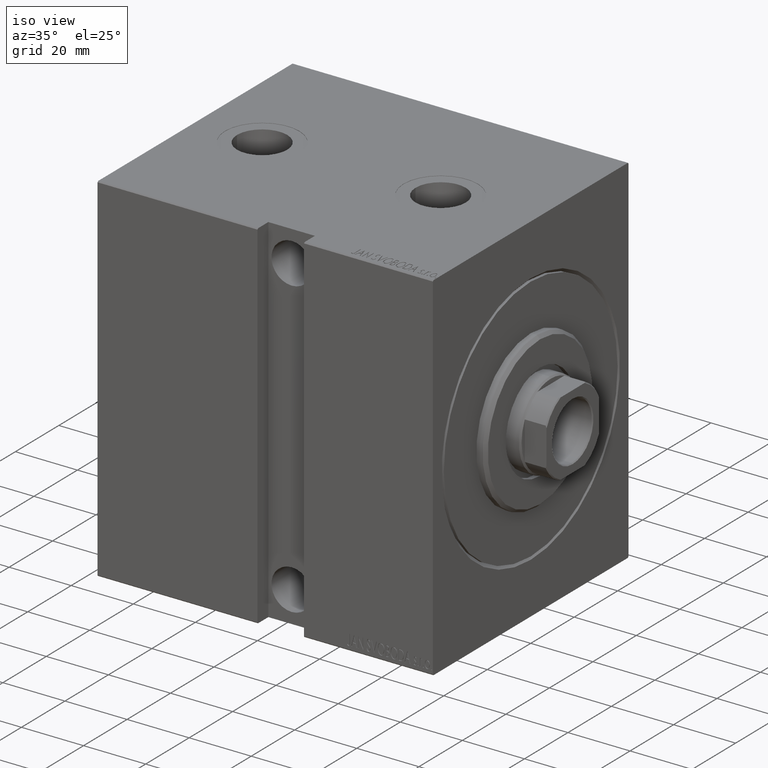
[diagram: clean part render]
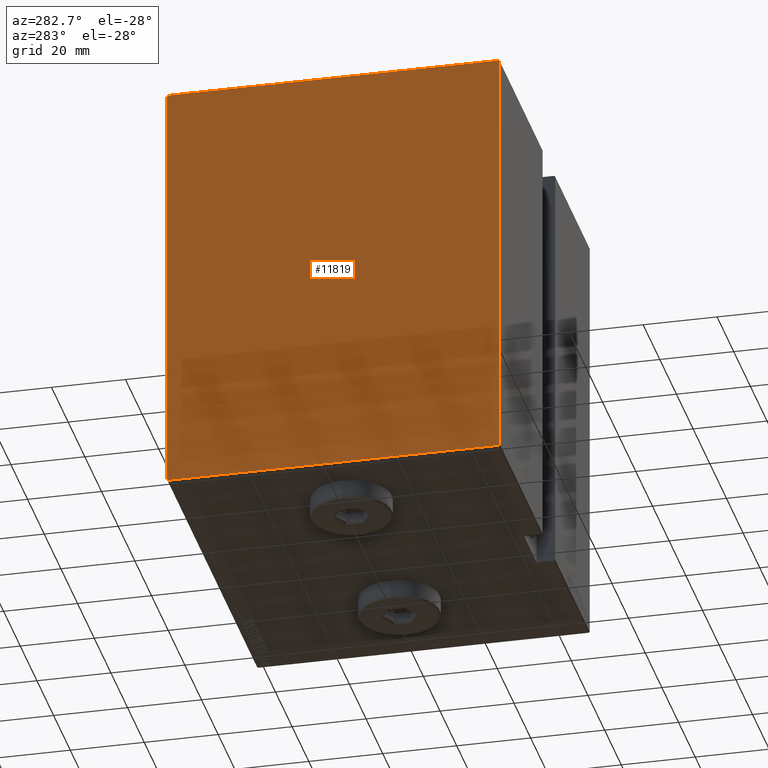
[diagram: tour spotlight — one face highlighted and labeled with its STEP entity id]
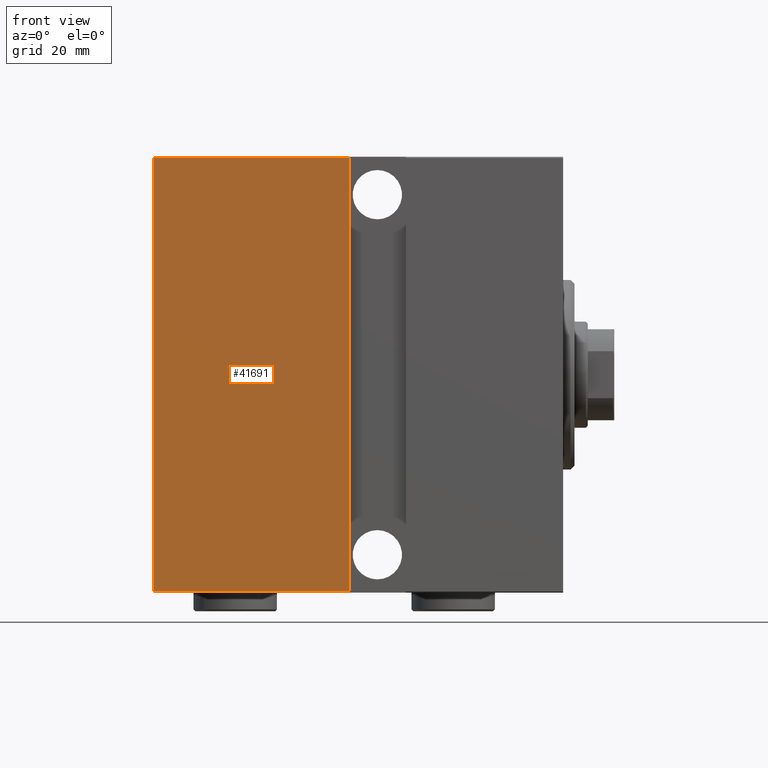
[diagram: tour spotlight — one face highlighted and labeled with its STEP entity id]
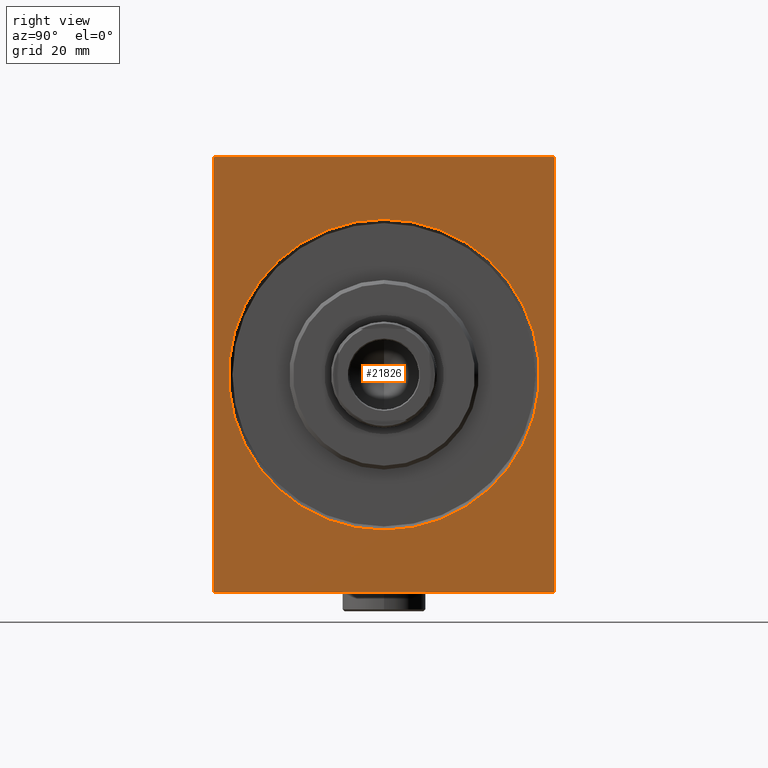
[diagram: tour spotlight — one face highlighted and labeled with its STEP entity id]
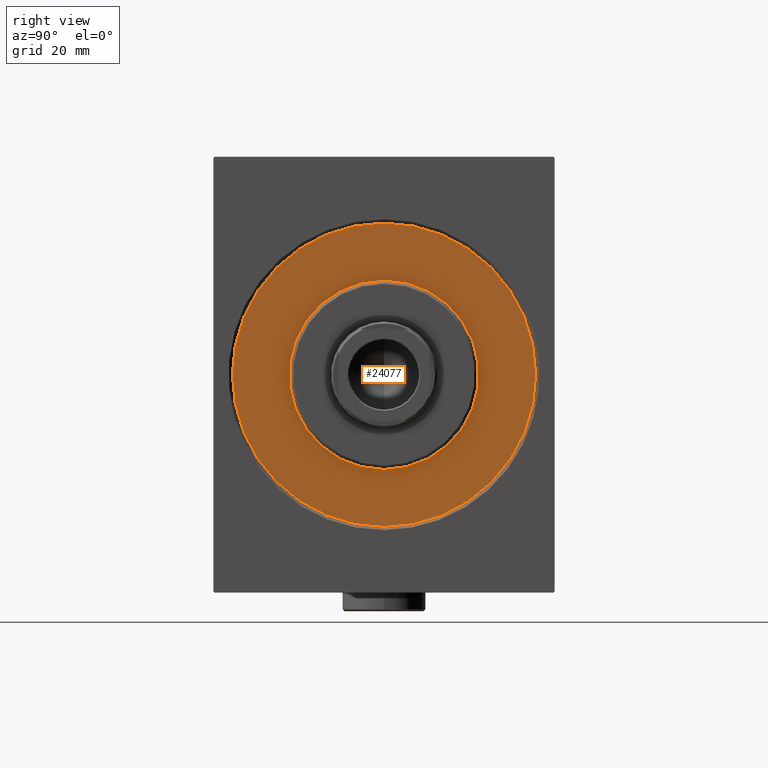
[diagram: tour spotlight — one face highlighted and labeled with its STEP entity id]
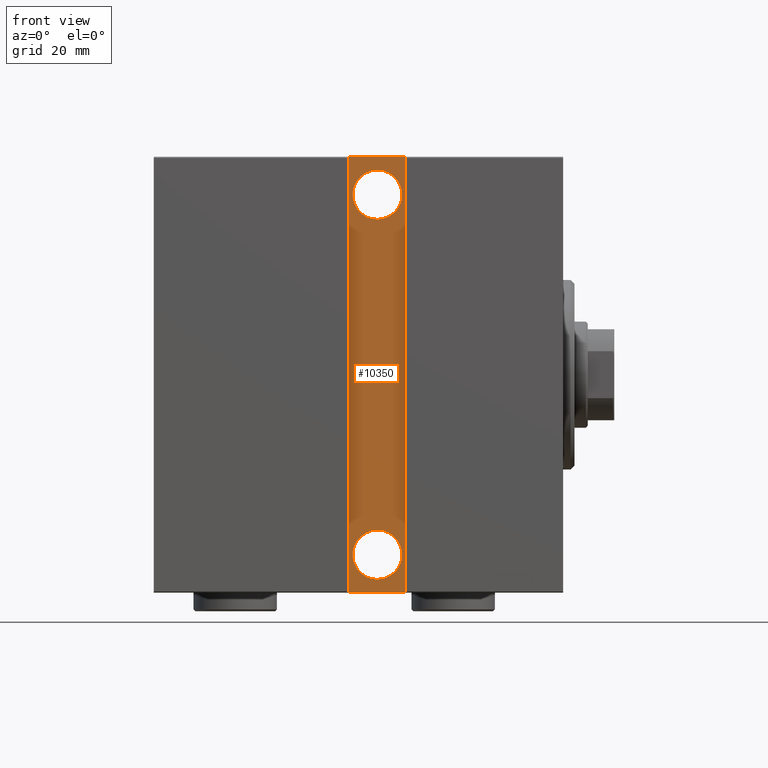
[diagram: tour spotlight — one face highlighted and labeled with its STEP entity id]
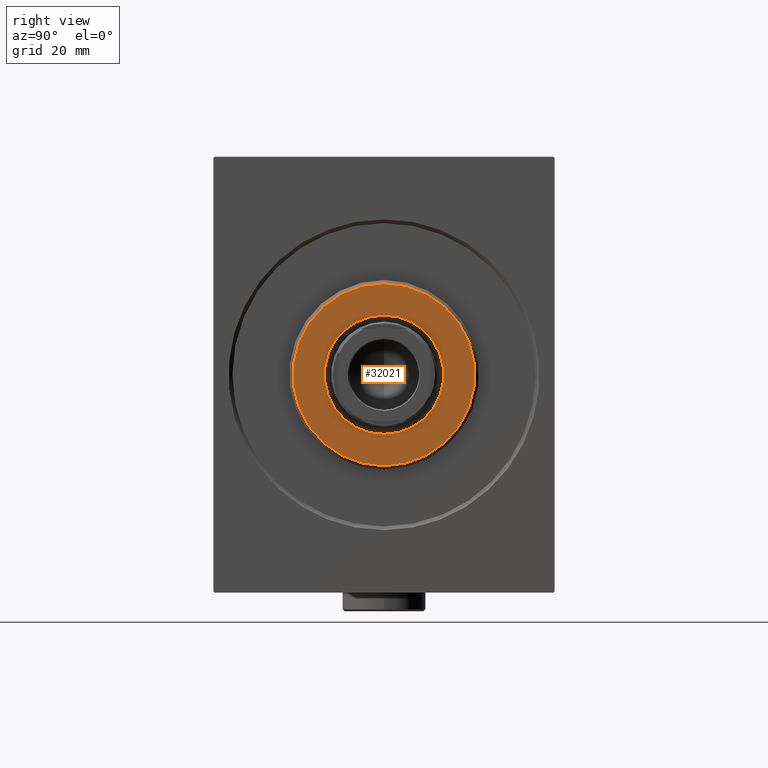
[diagram: tour spotlight — one face highlighted and labeled with its STEP entity id]
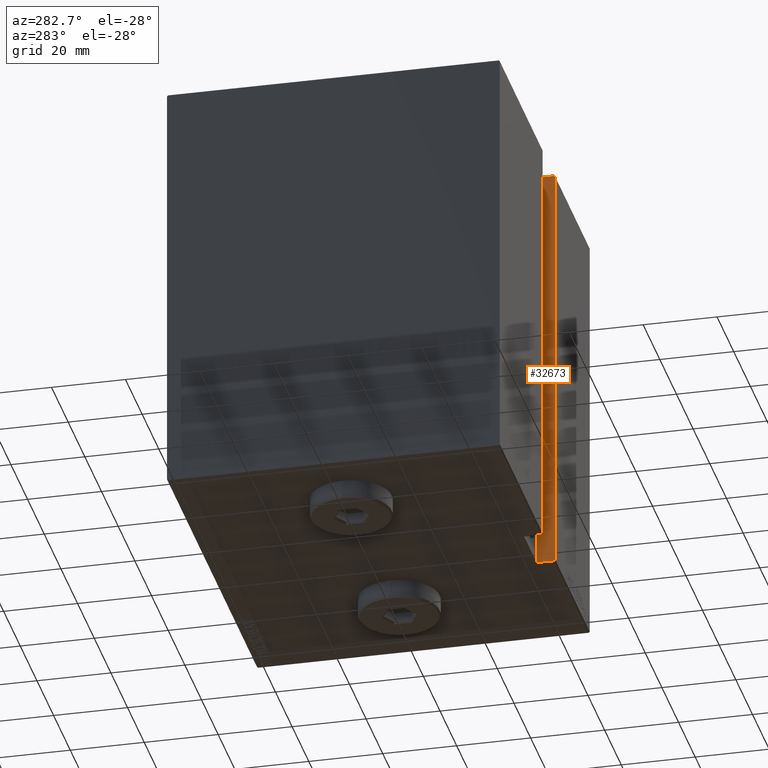
[diagram: tour spotlight — one face highlighted and labeled with its STEP entity id]
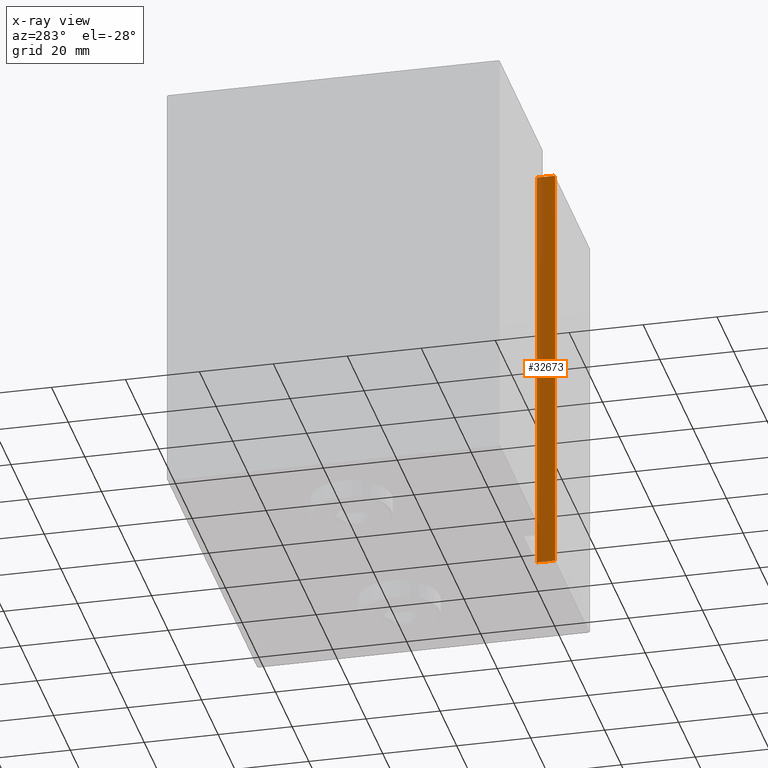
[diagram: x-ray of the same camera — body ghosted, this tour face saturated]
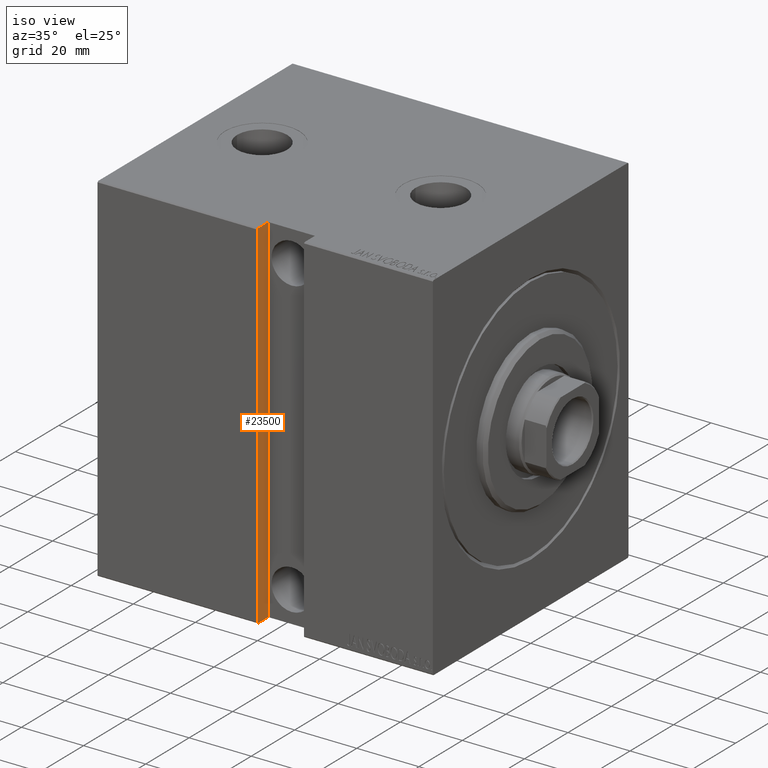
[diagram: tour spotlight — one face highlighted and labeled with its STEP entity id]
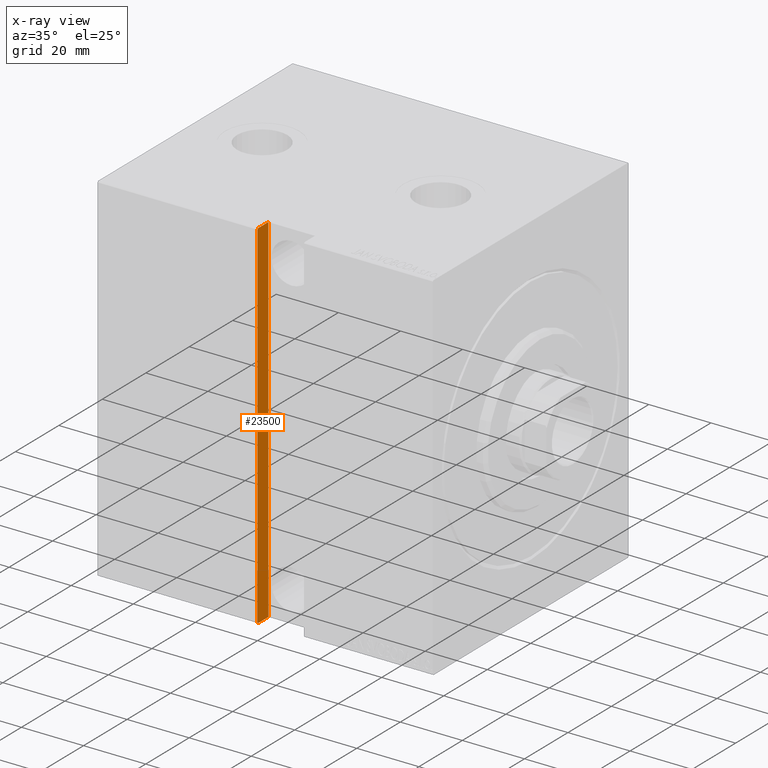
[diagram: x-ray of the same camera — body ghosted, this tour face saturated]
A machine part: a face-by-face anatomy tour. The part has 902 B-rep faces; the first image is the clean iso view, then the 8 largest visible faces are spotlighted one at a time (largest first), each with its STEP entity span.

Face 1 — auxiliary view, entity #11819. In plain terms, the highlighted planar face has unit normal (-1, 0, 0).
Definition (entity closure, byte-faithful):
#60 = ORIENTED_EDGE ( 'NONE', *, *, #18728, .T. ) ;
#278 = ORIENTED_EDGE ( 'NONE', *, *, #16950, .T. ) ;
#1346 = CARTESIAN_POINT ( 'NONE',  ( 108.0000000000000000, 45.00000000000001421, -57.50000000000000711 ) ) ;
#1401 = EDGE_CURVE ( 'NONE', #6272, #5452, #31841, .T. ) ;
#1415 = DIRECTION ( 'NONE',  ( 1.000000000000000000, 0.000000000000000000, -0.000000000000000000 ) ) ;
#1587 = CARTESIAN_POINT ( 'NONE',  ( 108.0000000000000000, 51.10000000000053433, 51.09999999999935483 ) ) ;
#1938 = ORIENTED_EDGE ( 'NONE', *, *, #1401, .T. ) ;
#3593 = CARTESIAN_POINT ( 'NONE',  ( 108.0000000000000000, -45.00000000000000000, -57.20000000000003126 ) ) ;
#5207 = PLANE ( 'NONE',  #38437 ) ;
#5452 = VERTEX_POINT ( 'NONE', #24704 ) ;
#5574 = LINE ( 'NONE', #12472, #43484 ) ;
#6272 = VERTEX_POINT ( 'NONE', #33858 ) ;
#6981 = VECTOR ( 'NONE', #14932, 1000.000000000000000 ) ;
#8277 = DIRECTION ( 'NONE',  ( -0.000000000000000000, -0.7071067811865393571, 0.7071067811865556774 ) ) ;
#9507 = ORIENTED_EDGE ( 'NONE', *, *, #10414, .T. ) ;
#10414 = EDGE_CURVE ( 'NONE', #39583, #18045, #27740, .T. ) ;
#11452 = ORIENTED_EDGE ( 'NONE', *, *, #15094, .T. ) ;
#11819 = ADVANCED_FACE ( 'NONE', ( #32140 ), #5207, .T. ) ;
#12195 = ORIENTED_EDGE ( 'NONE', *, *, #34893, .T. ) ;
#12472 = CARTESIAN_POINT ( 'NONE',  ( 108.0000000000000000, -45.00000000000000000, 57.49999999999999289 ) ) ;
#12544 = DIRECTION ( 'NONE',  ( -0.000000000000000000, 0.000000000000000000, -1.000000000000000000 ) ) ;
#12688 = DIRECTION ( 'NONE',  ( 0.000000000000000000, 0.000000000000000000, -1.000000000000000000 ) ) ;
#13000 = VECTOR ( 'NONE', #25996, 1000.000000000000114 ) ;
#13290 = DIRECTION ( 'NONE',  ( -0.000000000000000000, 0.7071067811865474617, -0.7071067811865474617 ) ) ;
#13494 = CARTESIAN_POINT ( 'NONE',  ( 108.0000000000000000, -51.10000000000000853, 51.10000000000000853 ) ) ;
#13723 = CARTESIAN_POINT ( 'NONE',  ( 108.0000000000000000, -51.10000000000002984, -51.10000000000002984 ) ) ;
#14932 = DIRECTION ( 'NONE',  ( 0.000000000000000000, 0.000000000000000000, 1.000000000000000000 ) ) ;
#15094 = EDGE_CURVE ( 'NONE', #23700, #39970, #33330, .T. ) ;
#15845 = VECTOR ( 'NONE', #27831, 1000.000000000000000 ) ;
#15910 = ORIENTED_EDGE ( 'NONE', *, *, #41069, .T. ) ;
#16440 = CARTESIAN_POINT ( 'NONE',  ( 108.0000000000000000, -44.69999999999997442, 57.49999999999999289 ) ) ;
#16950 = EDGE_CURVE ( 'NONE', #39970, #32290, #31924, .T. ) ;
#17643 = EDGE_LOOP ( 'NONE', ( #278, #60, #1938, #12195, #15910, #9507, #34124, #11452 ) ) ;
#18045 = VERTEX_POINT ( 'NONE', #21665 ) ;
#18728 = EDGE_CURVE ( 'NONE', #32290, #6272, #18874, .T. ) ;
#18874 = LINE ( 'NONE', #25775, #13000 ) ;
#20040 = VECTOR ( 'NONE', #13290, 1000.000000000000114 ) ;
#21425 = VECTOR ( 'NONE', #41107, 1000.000000000000114 ) ;
#21665 = CARTESIAN_POINT ( 'NONE',  ( 108.0000000000000000, -45.00000000000000000, 57.20000000000000284 ) ) ;
#21699 = CARTESIAN_POINT ( 'NONE',  ( 108.0000000000000000, 0.000000000000000000, 0.000000000000000000 ) ) ;
#22349 = CARTESIAN_POINT ( 'NONE',  ( 108.0000000000000000, 44.70000000000001705, -57.50000000000000711 ) ) ;
#23700 = VERTEX_POINT ( 'NONE', #3593 ) ;
#24262 = LINE ( 'NONE', #41648, #15845 ) ;
#24704 = CARTESIAN_POINT ( 'NONE',  ( 108.0000000000000000, 45.00000000000001421, 57.19999999999998863 ) ) ;
#25200 = LINE ( 'NONE', #1587, #33551 ) ;
#25775 = CARTESIAN_POINT ( 'NONE',  ( 108.0000000000000000, 51.10000000000002984, -51.10000000000002984 ) ) ;
#25996 = DIRECTION ( 'NONE',  ( -0.000000000000000000, 0.7071067811865474617, 0.7071067811865474617 ) ) ;
#27740 = LINE ( 'NONE', #13494, #21425 ) ;
#27831 = DIRECTION ( 'NONE',  ( 0.000000000000000000, -1.000000000000000000, -2.312964634635742957E-16 ) ) ;
#28609 = CARTESIAN_POINT ( 'NONE',  ( 108.0000000000000000, -45.00000000000000000, -57.50000000000002132 ) ) ;
#31841 = LINE ( 'NONE', #1346, #6981 ) ;
#31924 = LINE ( 'NONE', #28609, #37136 ) ;
#32140 = FACE_OUTER_BOUND ( 'NONE', #17643, .T. ) ;
#32290 = VERTEX_POINT ( 'NONE', #22349 ) ;
#33330 = LINE ( 'NONE', #13723, #20040 ) ;
#33551 = VECTOR ( 'NONE', #8277, 1000.000000000000000 ) ;
#33858 = CARTESIAN_POINT ( 'NONE',  ( 108.0000000000000000, 45.00000000000001421, -57.20000000000004547 ) ) ;
#34124 = ORIENTED_EDGE ( 'NONE', *, *, #37499, .T. ) ;
#34589 = CARTESIAN_POINT ( 'NONE',  ( 108.0000000000000000, -44.70000000000003126, -57.50000000000002132 ) ) ;
#34893 = EDGE_CURVE ( 'NONE', #5452, #41000, #25200, .T. ) ;
#37136 = VECTOR ( 'NONE', #38859, 1000.000000000000000 ) ;
#37499 = EDGE_CURVE ( 'NONE', #18045, #23700, #5574, .T. ) ;
#38297 = CARTESIAN_POINT ( 'NONE',  ( 108.0000000000000000, 44.70000000000001705, 57.50000000000001421 ) ) ;
#38437 = AXIS2_PLACEMENT_3D ( 'NONE', #21699, #1415, #12544 ) ;
#38859 = DIRECTION ( 'NONE',  ( 0.000000000000000000, 1.000000000000000000, 1.541976423090495140E-16 ) ) ;
#39583 = VERTEX_POINT ( 'NONE', #16440 ) ;
#39970 = VERTEX_POINT ( 'NONE', #34589 ) ;
#41000 = VERTEX_POINT ( 'NONE', #38297 ) ;
#41069 = EDGE_CURVE ( 'NONE', #41000, #39583, #24262, .T. ) ;
#41107 = DIRECTION ( 'NONE',  ( -0.000000000000000000, -0.7071067811865474617, -0.7071067811865474617 ) ) ;
#41648 = CARTESIAN_POINT ( 'NONE',  ( 108.0000000000000000, 45.00000000000001421, 57.50000000000001421 ) ) ;
#43484 = VECTOR ( 'NONE', #12688, 1000.000000000000000 ) ;

Face 2 — front view, entity #41691. In plain terms, the highlighted planar face has unit normal (0, 1, 0).
Definition (entity closure, byte-faithful):
#161 = AXIS2_PLACEMENT_3D ( 'NONE', #13908, #27500, #17695 ) ;
#682 = VERTEX_POINT ( 'NONE', #9240 ) ;
#1346 = CARTESIAN_POINT ( 'NONE',  ( 108.0000000000000000, 45.00000000000001421, -57.50000000000000711 ) ) ;
#1401 = EDGE_CURVE ( 'NONE', #6272, #5452, #31841, .T. ) ;
#5452 = VERTEX_POINT ( 'NONE', #24704 ) ;
#5858 = VECTOR ( 'NONE', #38961, 1000.000000000000000 ) ;
#5967 = EDGE_CURVE ( 'NONE', #21676, #5452, #20769, .T. ) ;
#6272 = VERTEX_POINT ( 'NONE', #33858 ) ;
#6981 = VECTOR ( 'NONE', #14932, 1000.000000000000000 ) ;
#8659 = VECTOR ( 'NONE', #9497, 1000.000000000000000 ) ;
#9240 = CARTESIAN_POINT ( 'NONE',  ( 56.50000000000000000, 45.00000000000001421, -57.20000000000004547 ) ) ;
#9497 = DIRECTION ( 'NONE',  ( -1.206764157201257291E-16, -0.000000000000000000, -1.000000000000000000 ) ) ;
#9921 = CARTESIAN_POINT ( 'NONE',  ( 56.50000000000000000, 45.00000000000001421, -57.50000000000000711 ) ) ;
#9923 = FACE_OUTER_BOUND ( 'NONE', #28389, .T. ) ;
#12966 = ORIENTED_EDGE ( 'NONE', *, *, #1401, .F. ) ;
#13908 = CARTESIAN_POINT ( 'NONE',  ( 108.0000000000000000, 45.00000000000001421, -57.50000000000000711 ) ) ;
#14932 = DIRECTION ( 'NONE',  ( 0.000000000000000000, 0.000000000000000000, 1.000000000000000000 ) ) ;
#17598 = EDGE_CURVE ( 'NONE', #6272, #682, #32265, .T. ) ;
#17695 = DIRECTION ( 'NONE',  ( 0.000000000000000000, -0.000000000000000000, -1.000000000000000000 ) ) ;
#20769 = LINE ( 'NONE', #41038, #26982 ) ;
#21270 = ORIENTED_EDGE ( 'NONE', *, *, #35540, .F. ) ;
#21676 = VERTEX_POINT ( 'NONE', #31138 ) ;
#23512 = PLANE ( 'NONE',  #161 ) ;
#24208 = ORIENTED_EDGE ( 'NONE', *, *, #5967, .T. ) ;
#24704 = CARTESIAN_POINT ( 'NONE',  ( 108.0000000000000000, 45.00000000000001421, 57.19999999999998863 ) ) ;
#26982 = VECTOR ( 'NONE', #34339, 1000.000000000000000 ) ;
#27500 = DIRECTION ( 'NONE',  ( 0.000000000000000000, -1.000000000000000000, 0.000000000000000000 ) ) ;
#28389 = EDGE_LOOP ( 'NONE', ( #12966, #42301, #21270, #24208 ) ) ;
#31138 = CARTESIAN_POINT ( 'NONE',  ( 56.50000000000001421, 45.00000000000001421, 57.20000000000001705 ) ) ;
#31841 = LINE ( 'NONE', #1346, #6981 ) ;
#32265 = LINE ( 'NONE', #39184, #5858 ) ;
#33858 = CARTESIAN_POINT ( 'NONE',  ( 108.0000000000000000, 45.00000000000001421, -57.20000000000004547 ) ) ;
#34339 = DIRECTION ( 'NONE',  ( 1.000000000000000000, 0.000000000000000000, 0.000000000000000000 ) ) ;
#35540 = EDGE_CURVE ( 'NONE', #21676, #682, #40446, .T. ) ;
#38961 = DIRECTION ( 'NONE',  ( -1.000000000000000000, 0.000000000000000000, 0.000000000000000000 ) ) ;
#39184 = CARTESIAN_POINT ( 'NONE',  ( 108.0000000000000000, 45.00000000000001421, -57.20000000000004547 ) ) ;
#40446 = LINE ( 'NONE', #9921, #8659 ) ;
#41038 = CARTESIAN_POINT ( 'NONE',  ( 108.0000000000000000, 45.00000000000001421, 57.20000000000001705 ) ) ;
#41691 = ADVANCED_FACE ( 'NONE', ( #9923 ), #23512, .F. ) ;
#42301 = ORIENTED_EDGE ( 'NONE', *, *, #17598, .T. ) ;

Face 3 — right view, entity #21826. In plain terms, the highlighted planar face has unit normal (-1, 0, 0).
Definition (entity closure, byte-faithful):
#705 = EDGE_CURVE ( 'NONE', #26819, #5846, #5465, .T. ) ;
#1384 = VERTEX_POINT ( 'NONE', #28300 ) ;
#1968 = VECTOR ( 'NONE', #22826, 1000.000000000000000 ) ;
#2429 = PLANE ( 'NONE',  #10955 ) ;
#2925 = DIRECTION ( 'NONE',  ( 1.000000000000000000, 0.000000000000000000, -0.000000000000000000 ) ) ;
#2973 = EDGE_CURVE ( 'NONE', #42365, #17174, #9893, .T. ) ;
#3161 = ORIENTED_EDGE ( 'NONE', *, *, #42714, .T. ) ;
#3374 = ORIENTED_EDGE ( 'NONE', *, *, #31565, .T. ) ;
#3510 = ORIENTED_EDGE ( 'NONE', *, *, #705, .F. ) ;
#3530 = VECTOR ( 'NONE', #27870, 1000.000000000000114 ) ;
#3535 = DIRECTION ( 'NONE',  ( 0.000000000000000000, 0.000000000000000000, -1.000000000000000000 ) ) ;
#5465 = LINE ( 'NONE', #43768, #1968 ) ;
#5846 = VERTEX_POINT ( 'NONE', #36165 ) ;
#5917 = CARTESIAN_POINT ( 'NONE',  ( 0.000000000000000000, -45.00000000000000000, 57.49999999999999289 ) ) ;
#6554 = DIRECTION ( 'NONE',  ( 0.000000000000000000, 1.000000000000000000, 1.541976423090495140E-16 ) ) ;
#7587 = CARTESIAN_POINT ( 'NONE',  ( 0.000000000000000000, 45.00000000000001421, -57.20000000000004547 ) ) ;
#7784 = VERTEX_POINT ( 'NONE', #42056 ) ;
#9319 = DIRECTION ( 'NONE',  ( -0.000000000000000000, 0.000000000000000000, -1.000000000000000000 ) ) ;
#9893 = LINE ( 'NONE', #5917, #28357 ) ;
#10413 = ORIENTED_EDGE ( 'NONE', *, *, #32189, .F. ) ;
#10455 = EDGE_CURVE ( 'NONE', #7784, #17174, #14817, .T. ) ;
#10955 = AXIS2_PLACEMENT_3D ( 'NONE', #30027, #13106, #9319 ) ;
#12554 = CARTESIAN_POINT ( 'NONE',  ( 0.000000000000000000, -45.00000000000000000, 57.20000000000000284 ) ) ;
#12656 = FACE_OUTER_BOUND ( 'NONE', #13277, .T. ) ;
#13106 = DIRECTION ( 'NONE',  ( 1.000000000000000000, 0.000000000000000000, -0.000000000000000000 ) ) ;
#13277 = EDGE_LOOP ( 'NONE', ( #3510, #29233, #10413, #13860, #15852, #42591, #15367, #14662 ) ) ;
#13349 = CARTESIAN_POINT ( 'NONE',  ( 0.000000000000000000, 0.000000000000000000, 0.000000000000000000 ) ) ;
#13439 = LINE ( 'NONE', #23257, #38506 ) ;
#13633 = CARTESIAN_POINT ( 'NONE',  ( 0.000000000000000000, -45.00000000000000000, 57.20000000000000284 ) ) ;
#13860 = ORIENTED_EDGE ( 'NONE', *, *, #29831, .T. ) ;
#14055 = LINE ( 'NONE', #13633, #42819 ) ;
#14588 = EDGE_CURVE ( 'NONE', #7784, #24822, #13439, .T. ) ;
#14662 = ORIENTED_EDGE ( 'NONE', *, *, #34785, .T. ) ;
#14715 = LINE ( 'NONE', #7587, #3530 ) ;
#14772 = DIRECTION ( 'NONE',  ( 0.000000000000000000, 0.000000000000000000, 1.000000000000000000 ) ) ;
#14817 = LINE ( 'NONE', #41999, #33497 ) ;
#14977 = CARTESIAN_POINT ( 'NONE',  ( 0.000000000000000000, 44.70000000000001705, 57.50000000000001421 ) ) ;
#14980 = VECTOR ( 'NONE', #14772, 1000.000000000000000 ) ;
#15367 = ORIENTED_EDGE ( 'NONE', *, *, #2973, .F. ) ;
#15647 = VECTOR ( 'NONE', #32009, 1000.000000000000000 ) ;
#15852 = ORIENTED_EDGE ( 'NONE', *, *, #14588, .F. ) ;
#17174 = VERTEX_POINT ( 'NONE', #41705 ) ;
#17949 = DIRECTION ( 'NONE',  ( 0.000000000000000000, -0.7071067811865474617, 0.7071067811865474617 ) ) ;
#18007 = AXIS2_PLACEMENT_3D ( 'NONE', #33422, #2925, #22533 ) ;
#18451 = CARTESIAN_POINT ( 'NONE',  ( 0.000000000000000000, 44.70000000000001705, 57.50000000000001421 ) ) ;
#19705 = VERTEX_POINT ( 'NONE', #42501 ) ;
#19955 = CIRCLE ( 'NONE', #35572, 41.00000000000000711 ) ;
#21789 = LINE ( 'NONE', #18451, #15647 ) ;
#21826 = ADVANCED_FACE ( 'NONE', ( #22912, #12656 ), #2429, .F. ) ;
#22533 = DIRECTION ( 'NONE',  ( 0.000000000000000000, 0.000000000000000000, -1.000000000000000000 ) ) ;
#22826 = DIRECTION ( 'NONE',  ( 0.000000000000000000, -1.000000000000000000, -2.312964634635742957E-16 ) ) ;
#22912 = FACE_BOUND ( 'NONE', #24952, .T. ) ;
#23257 = CARTESIAN_POINT ( 'NONE',  ( 0.000000000000000000, -45.00000000000000000, -57.50000000000002132 ) ) ;
#24822 = VERTEX_POINT ( 'NONE', #42368 ) ;
#24952 = EDGE_LOOP ( 'NONE', ( #3374, #3161 ) ) ;
#25911 = CARTESIAN_POINT ( 'NONE',  ( 0.000000000000000000, 45.00000000000001421, -57.50000000000000711 ) ) ;
#26393 = DIRECTION ( 'NONE',  ( 0.000000000000000000, 0.000000000000000000, -1.000000000000000000 ) ) ;
#26692 = VERTEX_POINT ( 'NONE', #34794 ) ;
#26819 = VERTEX_POINT ( 'NONE', #14977 ) ;
#27870 = DIRECTION ( 'NONE',  ( -0.000000000000000000, -0.7071067811865474617, -0.7071067811865474617 ) ) ;
#28300 = CARTESIAN_POINT ( 'NONE',  ( 0.000000000000000000, 45.00000000000001421, 57.19999999999998863 ) ) ;
#28357 = VECTOR ( 'NONE', #26393, 1000.000000000000000 ) ;
#29233 = ORIENTED_EDGE ( 'NONE', *, *, #29392, .T. ) ;
#29392 = EDGE_CURVE ( 'NONE', #26819, #1384, #21789, .T. ) ;
#29831 = EDGE_CURVE ( 'NONE', #19705, #24822, #14715, .T. ) ;
#30027 = CARTESIAN_POINT ( 'NONE',  ( 0.000000000000000000, 0.000000000000000000, 0.000000000000000000 ) ) ;
#31565 = EDGE_CURVE ( 'NONE', #38605, #26692, #19955, .T. ) ;
#32009 = DIRECTION ( 'NONE',  ( -0.000000000000000000, 0.7071067811865393571, -0.7071067811865556774 ) ) ;
#32189 = EDGE_CURVE ( 'NONE', #19705, #1384, #41959, .T. ) ;
#33422 = CARTESIAN_POINT ( 'NONE',  ( 0.000000000000000000, 0.000000000000000000, 0.000000000000000000 ) ) ;
#33497 = VECTOR ( 'NONE', #17949, 1000.000000000000114 ) ;
#33831 = DIRECTION ( 'NONE',  ( 1.000000000000000000, 0.000000000000000000, -0.000000000000000000 ) ) ;
#34785 = EDGE_CURVE ( 'NONE', #42365, #5846, #14055, .T. ) ;
#34794 = CARTESIAN_POINT ( 'NONE',  ( 0.000000000000000000, 5.021051876504148963E-15, -41.00000000000000711 ) ) ;
#35572 = AXIS2_PLACEMENT_3D ( 'NONE', #13349, #33831, #3535 ) ;
#36165 = CARTESIAN_POINT ( 'NONE',  ( 0.000000000000000000, -44.69999999999997442, 57.49999999999999289 ) ) ;
#38506 = VECTOR ( 'NONE', #6554, 1000.000000000000000 ) ;
#38605 = VERTEX_POINT ( 'NONE', #41459 ) ;
#41024 = DIRECTION ( 'NONE',  ( -0.000000000000000000, 0.7071067811865474617, 0.7071067811865474617 ) ) ;
#41459 = CARTESIAN_POINT ( 'NONE',  ( 0.000000000000000000, 0.000000000000000000, 41.00000000000000711 ) ) ;
#41472 = CIRCLE ( 'NONE', #18007, 41.00000000000000711 ) ;
#41705 = CARTESIAN_POINT ( 'NONE',  ( 0.000000000000000000, -45.00000000000000000, -57.20000000000003126 ) ) ;
#41959 = LINE ( 'NONE', #25911, #14980 ) ;
#41999 = CARTESIAN_POINT ( 'NONE',  ( 0.000000000000000000, -44.70000000000003126, -57.50000000000002132 ) ) ;
#42056 = CARTESIAN_POINT ( 'NONE',  ( 0.000000000000000000, -44.70000000000003126, -57.50000000000002132 ) ) ;
#42365 = VERTEX_POINT ( 'NONE', #12554 ) ;
#42368 = CARTESIAN_POINT ( 'NONE',  ( 0.000000000000000000, 44.70000000000001705, -57.50000000000000711 ) ) ;
#42501 = CARTESIAN_POINT ( 'NONE',  ( 0.000000000000000000, 45.00000000000001421, -57.20000000000004547 ) ) ;
#42591 = ORIENTED_EDGE ( 'NONE', *, *, #10455, .T. ) ;
#42714 = EDGE_CURVE ( 'NONE', #26692, #38605, #41472, .T. ) ;
#42819 = VECTOR ( 'NONE', #41024, 1000.000000000000114 ) ;
#43768 = CARTESIAN_POINT ( 'NONE',  ( 0.000000000000000000, 45.00000000000001421, 57.50000000000001421 ) ) ;

Face 4 — right view, entity #24077. In plain terms, the highlighted planar face has unit normal (1, 0, 0).
Definition (entity closure, byte-faithful):
#903 = DIRECTION ( 'NONE',  ( 0.000000000000000000, 0.000000000000000000, -1.000000000000000000 ) ) ;
#940 = DIRECTION ( 'NONE',  ( 1.000000000000000000, -0.000000000000000000, 0.000000000000000000 ) ) ;
#1917 = DIRECTION ( 'NONE',  ( 1.000000000000000000, 0.000000000000000000, 0.000000000000000000 ) ) ;
#2769 = ORIENTED_EDGE ( 'NONE', *, *, #39802, .T. ) ;
#2840 = ORIENTED_EDGE ( 'NONE', *, *, #41886, .F. ) ;
#5269 = DIRECTION ( 'NONE',  ( 0.000000000000000000, 0.000000000000000000, -1.000000000000000000 ) ) ;
#6447 = CARTESIAN_POINT ( 'NONE',  ( 0.000000000000000000, 0.000000000000000000, -40.00000000000000000 ) ) ;
#6802 = VERTEX_POINT ( 'NONE', #24215 ) ;
#7329 = EDGE_CURVE ( 'NONE', #39150, #16129, #43405, .T. ) ;
#7389 = CIRCLE ( 'NONE', #29446, 40.00000000000000000 ) ;
#7607 = CARTESIAN_POINT ( 'NONE',  ( 0.000000000000000000, 0.000000000000000000, 0.000000000000000000 ) ) ;
#8187 = EDGE_LOOP ( 'NONE', ( #14981, #2769 ) ) ;
#10923 = CARTESIAN_POINT ( 'NONE',  ( 0.000000000000000000, 0.000000000000000000, 0.000000000000000000 ) ) ;
#14794 = VERTEX_POINT ( 'NONE', #6447 ) ;
#14981 = ORIENTED_EDGE ( 'NONE', *, *, #21690, .T. ) ;
#15049 = CARTESIAN_POINT ( 'NONE',  ( 0.000000000000000000, 3.061616997868383043E-15, -25.00000000000000000 ) ) ;
#16129 = VERTEX_POINT ( 'NONE', #15049 ) ;
#16726 = AXIS2_PLACEMENT_3D ( 'NONE', #22415, #1917, #5269 ) ;
#20275 = CARTESIAN_POINT ( 'NONE',  ( 0.000000000000000000, 0.000000000000000000, 0.000000000000000000 ) ) ;
#21690 = EDGE_CURVE ( 'NONE', #14794, #6802, #7389, .T. ) ;
#21960 = FACE_BOUND ( 'NONE', #31622, .T. ) ;
#22415 = CARTESIAN_POINT ( 'NONE',  ( 0.000000000000000000, 0.000000000000000000, 0.000000000000000000 ) ) ;
#24004 = ORIENTED_EDGE ( 'NONE', *, *, #7329, .F. ) ;
#24077 = ADVANCED_FACE ( 'NONE', ( #35107, #21960 ), #38902, .T. ) ;
#24180 = AXIS2_PLACEMENT_3D ( 'NONE', #10923, #41212, #903 ) ;
#24215 = CARTESIAN_POINT ( 'NONE',  ( 0.000000000000000000, 4.898587196589413026E-15, 40.00000000000000000 ) ) ;
#27596 = DIRECTION ( 'NONE',  ( 1.000000000000000000, 0.000000000000000000, 0.000000000000000000 ) ) ;
#29446 = AXIS2_PLACEMENT_3D ( 'NONE', #20275, #27596, #33842 ) ;
#29958 = DIRECTION ( 'NONE',  ( 0.000000000000000000, 0.000000000000000000, -1.000000000000000000 ) ) ;
#31622 = EDGE_LOOP ( 'NONE', ( #24004, #2840 ) ) ;
#33503 = CARTESIAN_POINT ( 'NONE',  ( 0.000000000000000000, 0.000000000000000000, 25.00000000000000000 ) ) ;
#33842 = DIRECTION ( 'NONE',  ( 0.000000000000000000, 0.000000000000000000, -1.000000000000000000 ) ) ;
#35107 = FACE_OUTER_BOUND ( 'NONE', #8187, .T. ) ;
#35432 = DIRECTION ( 'NONE',  ( 0.000000000000000000, 0.000000000000000000, -1.000000000000000000 ) ) ;
#36649 = DIRECTION ( 'NONE',  ( 1.000000000000000000, 0.000000000000000000, 0.000000000000000000 ) ) ;
#37838 = AXIS2_PLACEMENT_3D ( 'NONE', #43784, #36649, #29958 ) ;
#38554 = CIRCLE ( 'NONE', #37838, 40.00000000000000000 ) ;
#38902 = PLANE ( 'NONE',  #16726 ) ;
#39150 = VERTEX_POINT ( 'NONE', #33503 ) ;
#39802 = EDGE_CURVE ( 'NONE', #6802, #14794, #38554, .T. ) ;
#40023 = AXIS2_PLACEMENT_3D ( 'NONE', #7607, #940, #35432 ) ;
#41212 = DIRECTION ( 'NONE',  ( 1.000000000000000000, -0.000000000000000000, 0.000000000000000000 ) ) ;
#41886 = EDGE_CURVE ( 'NONE', #16129, #39150, #42144, .T. ) ;
#42144 = CIRCLE ( 'NONE', #40023, 25.00000000000000000 ) ;
#43405 = CIRCLE ( 'NONE', #24180, 25.00000000000000000 ) ;
#43784 = CARTESIAN_POINT ( 'NONE',  ( 0.000000000000000000, 0.000000000000000000, 0.000000000000000000 ) ) ;

Face 5 — front view, entity #10350. In plain terms, the highlighted planar face has unit normal (0, 1, 0).
Definition (entity closure, byte-faithful):
#1530 = EDGE_LOOP ( 'NONE', ( #28504, #36566, #16138, #11025 ) ) ;
#1843 = CARTESIAN_POINT ( 'NONE',  ( 49.00000000000002132, 40.00000000000001421, 47.50000000000000000 ) ) ;
#1888 = CARTESIAN_POINT ( 'NONE',  ( 49.00000000000002132, 40.00000000000001421, 54.00000000000000000 ) ) ;
#1978 = EDGE_CURVE ( 'NONE', #24561, #14476, #36146, .T. ) ;
#2004 = AXIS2_PLACEMENT_3D ( 'NONE', #1843, #38387, #38618 ) ;
#3111 = VERTEX_POINT ( 'NONE', #7202 ) ;
#3257 = VERTEX_POINT ( 'NONE', #10709 ) ;
#3267 = PLANE ( 'NONE',  #41362 ) ;
#4976 = EDGE_CURVE ( 'NONE', #5047, #22044, #9811, .T. ) ;
#5047 = VERTEX_POINT ( 'NONE', #13802 ) ;
#5732 = VECTOR ( 'NONE', #11911, 1000.000000000000000 ) ;
#6551 = ORIENTED_EDGE ( 'NONE', *, *, #42495, .T. ) ;
#7202 = CARTESIAN_POINT ( 'NONE',  ( 49.00000000000002132, 40.00000000000001421, -41.00000000000000000 ) ) ;
#7910 = EDGE_LOOP ( 'NONE', ( #32605, #15204 ) ) ;
#8052 = CIRCLE ( 'NONE', #20822, 6.499999999999999112 ) ;
#8168 = EDGE_CURVE ( 'NONE', #3257, #42738, #31730, .T. ) ;
#9168 = CARTESIAN_POINT ( 'NONE',  ( 56.50000000000001421, 40.00000000000002132, -57.50000000000000711 ) ) ;
#9364 = AXIS2_PLACEMENT_3D ( 'NONE', #37243, #43492, #40371 ) ;
#9811 = LINE ( 'NONE', #15448, #10604 ) ;
#10166 = FACE_BOUND ( 'NONE', #7910, .T. ) ;
#10350 = ADVANCED_FACE ( 'NONE', ( #10166, #10589, #30634 ), #3267, .F. ) ;
#10589 = FACE_BOUND ( 'NONE', #28281, .T. ) ;
#10604 = VECTOR ( 'NONE', #40545, 1000.000000000000000 ) ;
#10709 = CARTESIAN_POINT ( 'NONE',  ( 56.50000000000001421, 40.00000000000001421, 57.49999999999997868 ) ) ;
#11025 = ORIENTED_EDGE ( 'NONE', *, *, #15146, .T. ) ;
#11482 = DIRECTION ( 'NONE',  ( -1.000000000000000000, 0.000000000000000000, 0.000000000000000000 ) ) ;
#11622 = CARTESIAN_POINT ( 'NONE',  ( 56.50000000000001421, 40.00000000000001421, 57.49999999999997868 ) ) ;
#11911 = DIRECTION ( 'NONE',  ( -1.206764157201257291E-16, -0.000000000000000000, -1.000000000000000000 ) ) ;
#12206 = VECTOR ( 'NONE', #11482, 1000.000000000000000 ) ;
#13102 = EDGE_CURVE ( 'NONE', #22044, #3257, #15183, .T. ) ;
#13802 = CARTESIAN_POINT ( 'NONE',  ( 41.50000000000000000, 40.00000000000001421, -57.50000000000000711 ) ) ;
#14476 = VERTEX_POINT ( 'NONE', #1888 ) ;
#14992 = VECTOR ( 'NONE', #36106, 1000.000000000000000 ) ;
#15045 = CIRCLE ( 'NONE', #9364, 6.499999999999999112 ) ;
#15146 = EDGE_CURVE ( 'NONE', #42738, #5047, #41782, .T. ) ;
#15183 = LINE ( 'NONE', #11622, #14992 ) ;
#15204 = ORIENTED_EDGE ( 'NONE', *, *, #1978, .T. ) ;
#15448 = CARTESIAN_POINT ( 'NONE',  ( 41.50000000000000000, 40.00000000000001421, -57.50000000000000711 ) ) ;
#16138 = ORIENTED_EDGE ( 'NONE', *, *, #8168, .T. ) ;
#17869 = CARTESIAN_POINT ( 'NONE',  ( 49.00000000000002132, 40.00000000000001421, -47.50000000000000000 ) ) ;
#18519 = CIRCLE ( 'NONE', #28467, 6.499999999999999112 ) ;
#20616 = CARTESIAN_POINT ( 'NONE',  ( 0.000000000000000000, 40.00000000000001421, 0.000000000000000000 ) ) ;
#20822 = AXIS2_PLACEMENT_3D ( 'NONE', #17869, #40608, #27664 ) ;
#22044 = VERTEX_POINT ( 'NONE', #24679 ) ;
#22951 = CARTESIAN_POINT ( 'NONE',  ( 49.00000000000002132, 40.00000000000001421, -54.00000000000000000 ) ) ;
#24175 = DIRECTION ( 'NONE',  ( 0.000000000000000000, -0.000000000000000000, -1.000000000000000000 ) ) ;
#24561 = VERTEX_POINT ( 'NONE', #27000 ) ;
#24679 = CARTESIAN_POINT ( 'NONE',  ( 41.50000000000001421, 40.00000000000001421, 57.49999999999997868 ) ) ;
#26047 = ORIENTED_EDGE ( 'NONE', *, *, #31157, .T. ) ;
#27000 = CARTESIAN_POINT ( 'NONE',  ( 49.00000000000002132, 40.00000000000001421, 41.00000000000000000 ) ) ;
#27664 = DIRECTION ( 'NONE',  ( 0.000000000000000000, 0.000000000000000000, -1.000000000000000000 ) ) ;
#28281 = EDGE_LOOP ( 'NONE', ( #6551, #26047 ) ) ;
#28467 = AXIS2_PLACEMENT_3D ( 'NONE', #29319, #31973, #42681 ) ;
#28504 = ORIENTED_EDGE ( 'NONE', *, *, #4976, .T. ) ;
#28849 = CARTESIAN_POINT ( 'NONE',  ( 56.50000000000000000, 40.00000000000001421, -57.50000000000000711 ) ) ;
#29319 = CARTESIAN_POINT ( 'NONE',  ( 49.00000000000002132, 40.00000000000001421, -47.50000000000000000 ) ) ;
#30634 = FACE_OUTER_BOUND ( 'NONE', #1530, .T. ) ;
#31157 = EDGE_CURVE ( 'NONE', #34116, #3111, #18519, .T. ) ;
#31730 = LINE ( 'NONE', #28849, #5732 ) ;
#31973 = DIRECTION ( 'NONE',  ( 0.000000000000000000, -1.000000000000000000, 0.000000000000000000 ) ) ;
#32605 = ORIENTED_EDGE ( 'NONE', *, *, #38496, .T. ) ;
#34116 = VERTEX_POINT ( 'NONE', #22951 ) ;
#36106 = DIRECTION ( 'NONE',  ( 1.000000000000000000, -0.000000000000000000, -0.000000000000000000 ) ) ;
#36146 = CIRCLE ( 'NONE', #2004, 6.499999999999999112 ) ;
#36566 = ORIENTED_EDGE ( 'NONE', *, *, #13102, .T. ) ;
#37243 = CARTESIAN_POINT ( 'NONE',  ( 49.00000000000002132, 40.00000000000001421, 47.50000000000000000 ) ) ;
#37345 = DIRECTION ( 'NONE',  ( 0.000000000000000000, -1.000000000000000000, 0.000000000000000000 ) ) ;
#38387 = DIRECTION ( 'NONE',  ( 0.000000000000000000, -1.000000000000000000, 0.000000000000000000 ) ) ;
#38441 = CARTESIAN_POINT ( 'NONE',  ( 56.50000000000000000, 40.00000000000001421, -57.50000000000000711 ) ) ;
#38496 = EDGE_CURVE ( 'NONE', #14476, #24561, #15045, .T. ) ;
#38618 = DIRECTION ( 'NONE',  ( 0.000000000000000000, 0.000000000000000000, -1.000000000000000000 ) ) ;
#40371 = DIRECTION ( 'NONE',  ( 0.000000000000000000, 0.000000000000000000, -1.000000000000000000 ) ) ;
#40545 = DIRECTION ( 'NONE',  ( 1.206764157201257291E-16, 0.000000000000000000, 1.000000000000000000 ) ) ;
#40608 = DIRECTION ( 'NONE',  ( 0.000000000000000000, -1.000000000000000000, 0.000000000000000000 ) ) ;
#41362 = AXIS2_PLACEMENT_3D ( 'NONE', #20616, #37345, #24175 ) ;
#41782 = LINE ( 'NONE', #38441, #12206 ) ;
#42495 = EDGE_CURVE ( 'NONE', #3111, #34116, #8052, .T. ) ;
#42681 = DIRECTION ( 'NONE',  ( 0.000000000000000000, 0.000000000000000000, -1.000000000000000000 ) ) ;
#42738 = VERTEX_POINT ( 'NONE', #9168 ) ;
#43492 = DIRECTION ( 'NONE',  ( 0.000000000000000000, -1.000000000000000000, 0.000000000000000000 ) ) ;

Face 6 — right view, entity #32021. In plain terms, the highlighted planar face has unit normal (1, 0, 0).
Definition (entity closure, byte-faithful):
#85 = DIRECTION ( 'NONE',  ( 0.000000000000000000, 0.000000000000000000, -1.000000000000000000 ) ) ;
#2433 = CARTESIAN_POINT ( 'NONE',  ( 3.000000000000000000, 1.928818708657080950E-15, -15.75000000000000000 ) ) ;
#5409 = CARTESIAN_POINT ( 'NONE',  ( 3.000000000000000000, 0.000000000000000000, 0.000000000000000000 ) ) ;
#5479 = AXIS2_PLACEMENT_3D ( 'NONE', #5409, #25895, #12078 ) ;
#6347 = DIRECTION ( 'NONE',  ( 0.000000000000000000, 0.000000000000000000, -1.000000000000000000 ) ) ;
#6773 = CARTESIAN_POINT ( 'NONE',  ( 3.000000000000000000, 0.000000000000000000, 0.000000000000000000 ) ) ;
#7199 = DIRECTION ( 'NONE',  ( -1.000000000000000000, 0.000000000000000000, -0.000000000000000000 ) ) ;
#7640 = CARTESIAN_POINT ( 'NONE',  ( 3.000000000000000000, 0.000000000000000000, 0.000000000000000000 ) ) ;
#8719 = CARTESIAN_POINT ( 'NONE',  ( 3.000000000000000000, 0.000000000000000000, 0.000000000000000000 ) ) ;
#9504 = CIRCLE ( 'NONE', #10196, 23.99999999999997868 ) ;
#9688 = PLANE ( 'NONE',  #20668 ) ;
#10196 = AXIS2_PLACEMENT_3D ( 'NONE', #7640, #14098, #85 ) ;
#12078 = DIRECTION ( 'NONE',  ( 0.000000000000000000, 0.000000000000000000, -1.000000000000000000 ) ) ;
#12209 = CIRCLE ( 'NONE', #14322, 23.99999999999997868 ) ;
#12236 = EDGE_CURVE ( 'NONE', #29108, #31835, #12209, .T. ) ;
#14098 = DIRECTION ( 'NONE',  ( 1.000000000000000000, -0.000000000000000000, 0.000000000000000000 ) ) ;
#14322 = AXIS2_PLACEMENT_3D ( 'NONE', #8719, #42794, #32309 ) ;
#15942 = FACE_BOUND ( 'NONE', #27080, .T. ) ;
#17603 = ORIENTED_EDGE ( 'NONE', *, *, #20180, .T. ) ;
#19081 = EDGE_CURVE ( 'NONE', #35447, #28339, #21552, .T. ) ;
#20050 = CARTESIAN_POINT ( 'NONE',  ( 3.000000000000000000, 3.000384657911014285E-15, -23.99999999999997868 ) ) ;
#20180 = EDGE_CURVE ( 'NONE', #31835, #29108, #9504, .T. ) ;
#20419 = CIRCLE ( 'NONE', #5479, 15.75000000000000000 ) ;
#20602 = EDGE_LOOP ( 'NONE', ( #17603, #27952 ) ) ;
#20668 = AXIS2_PLACEMENT_3D ( 'NONE', #23272, #36857, #6347 ) ;
#21552 = CIRCLE ( 'NONE', #33629, 15.75000000000000000 ) ;
#22899 = CARTESIAN_POINT ( 'NONE',  ( 3.000000000000000000, 0.000000000000000000, 23.99999999999997868 ) ) ;
#23272 = CARTESIAN_POINT ( 'NONE',  ( 3.000000000000000000, 0.000000000000000000, 0.000000000000000000 ) ) ;
#24349 = DIRECTION ( 'NONE',  ( 0.000000000000000000, 0.000000000000000000, -1.000000000000000000 ) ) ;
#25895 = DIRECTION ( 'NONE',  ( -1.000000000000000000, 0.000000000000000000, -0.000000000000000000 ) ) ;
#26774 = EDGE_CURVE ( 'NONE', #28339, #35447, #20419, .T. ) ;
#27044 = FACE_OUTER_BOUND ( 'NONE', #20602, .T. ) ;
#27080 = EDGE_LOOP ( 'NONE', ( #41039, #30529 ) ) ;
#27952 = ORIENTED_EDGE ( 'NONE', *, *, #12236, .T. ) ;
#28339 = VERTEX_POINT ( 'NONE', #2433 ) ;
#29108 = VERTEX_POINT ( 'NONE', #20050 ) ;
#30529 = ORIENTED_EDGE ( 'NONE', *, *, #26774, .T. ) ;
#31835 = VERTEX_POINT ( 'NONE', #22899 ) ;
#32021 = ADVANCED_FACE ( 'NONE', ( #27044, #15942 ), #9688, .T. ) ;
#32309 = DIRECTION ( 'NONE',  ( 0.000000000000000000, 0.000000000000000000, -1.000000000000000000 ) ) ;
#33629 = AXIS2_PLACEMENT_3D ( 'NONE', #6773, #7199, #24349 ) ;
#35447 = VERTEX_POINT ( 'NONE', #37796 ) ;
#36857 = DIRECTION ( 'NONE',  ( 1.000000000000000000, -0.000000000000000000, 0.000000000000000000 ) ) ;
#37796 = CARTESIAN_POINT ( 'NONE',  ( 3.000000000000000000, 0.000000000000000000, 15.75000000000000000 ) ) ;
#41039 = ORIENTED_EDGE ( 'NONE', *, *, #19081, .T. ) ;
#42794 = DIRECTION ( 'NONE',  ( 1.000000000000000000, -0.000000000000000000, 0.000000000000000000 ) ) ;

Face 7 — auxiliary view, entity #32673. An x-ray twin of the same camera follows (body ghosted, this face saturated) — the face is partly hidden behind the body. In plain terms, the highlighted planar face has unit normal (1, 0, 0).
Definition (entity closure, byte-faithful):
#848 = VECTOR ( 'NONE', #4932, 1000.000000000000000 ) ;
#3758 = LINE ( 'NONE', #17349, #33718 ) ;
#4932 = DIRECTION ( 'NONE',  ( 1.206764157201257291E-16, 0.000000000000000000, 1.000000000000000000 ) ) ;
#4976 = EDGE_CURVE ( 'NONE', #5047, #22044, #9811, .T. ) ;
#5047 = VERTEX_POINT ( 'NONE', #13802 ) ;
#5588 = DIRECTION ( 'NONE',  ( 8.533111188498877384E-17, -0.7071067811865393571, 0.7071067811865556774 ) ) ;
#5716 = CARTESIAN_POINT ( 'NONE',  ( 41.50000000000000000, 40.00000000000001421, -57.50000000000000711 ) ) ;
#6308 = EDGE_CURVE ( 'NONE', #22044, #32732, #20501, .T. ) ;
#8165 = CARTESIAN_POINT ( 'NONE',  ( 41.50000000000001421, 44.70000000000001705, 57.49999999999997868 ) ) ;
#8875 = ORIENTED_EDGE ( 'NONE', *, *, #22831, .T. ) ;
#9372 = CARTESIAN_POINT ( 'NONE',  ( 41.50000000000000711, 44.70000000000000995, 57.50000000000002132 ) ) ;
#9811 = LINE ( 'NONE', #15448, #10604 ) ;
#10392 = CARTESIAN_POINT ( 'NONE',  ( 41.50000000000000000, 40.00000000000001421, -57.50000000000000711 ) ) ;
#10604 = VECTOR ( 'NONE', #40545, 1000.000000000000000 ) ;
#10981 = ORIENTED_EDGE ( 'NONE', *, *, #20652, .T. ) ;
#13516 = DIRECTION ( 'NONE',  ( 1.206764157201257291E-16, 0.000000000000000000, 1.000000000000000000 ) ) ;
#13802 = CARTESIAN_POINT ( 'NONE',  ( 41.50000000000000000, 40.00000000000001421, -57.50000000000000711 ) ) ;
#15448 = CARTESIAN_POINT ( 'NONE',  ( 41.50000000000000000, 40.00000000000001421, -57.50000000000000711 ) ) ;
#15497 = CARTESIAN_POINT ( 'NONE',  ( 41.50000000000000000, 45.00000000000001421, -57.20000000000004547 ) ) ;
#16717 = EDGE_CURVE ( 'NONE', #5047, #34216, #32645, .T. ) ;
#17159 = EDGE_CURVE ( 'NONE', #32824, #31451, #28555, .T. ) ;
#17313 = VECTOR ( 'NONE', #5588, 1000.000000000000000 ) ;
#17349 = CARTESIAN_POINT ( 'NONE',  ( 41.49999999999999289, 45.00000000000002132, -57.20000000000003837 ) ) ;
#19304 = DIRECTION ( 'NONE',  ( -0.000000000000000000, 1.000000000000000000, -0.000000000000000000 ) ) ;
#19906 = VECTOR ( 'NONE', #33653, 1000.000000000000000 ) ;
#20501 = LINE ( 'NONE', #23851, #19906 ) ;
#20652 = EDGE_CURVE ( 'NONE', #31451, #32732, #43445, .T. ) ;
#21135 = EDGE_LOOP ( 'NONE', ( #24150, #10981, #33302, #23524, #30363, #8875 ) ) ;
#22044 = VERTEX_POINT ( 'NONE', #24679 ) ;
#22831 = EDGE_CURVE ( 'NONE', #34216, #32824, #3758, .T. ) ;
#23524 = ORIENTED_EDGE ( 'NONE', *, *, #4976, .F. ) ;
#23851 = CARTESIAN_POINT ( 'NONE',  ( 41.50000000000001421, 40.00000000000001421, 57.49999999999997868 ) ) ;
#24150 = ORIENTED_EDGE ( 'NONE', *, *, #17159, .T. ) ;
#24679 = CARTESIAN_POINT ( 'NONE',  ( 41.50000000000001421, 40.00000000000001421, 57.49999999999997868 ) ) ;
#25213 = CARTESIAN_POINT ( 'NONE',  ( 41.50000000000000000, 45.00000000000001421, -57.50000000000000711 ) ) ;
#28555 = LINE ( 'NONE', #25213, #848 ) ;
#30363 = ORIENTED_EDGE ( 'NONE', *, *, #16717, .T. ) ;
#31451 = VERTEX_POINT ( 'NONE', #37658 ) ;
#32645 = LINE ( 'NONE', #5716, #42130 ) ;
#32673 = ADVANCED_FACE ( 'NONE', ( #37145 ), #40280, .F. ) ;
#32732 = VERTEX_POINT ( 'NONE', #8165 ) ;
#32824 = VERTEX_POINT ( 'NONE', #15497 ) ;
#33302 = ORIENTED_EDGE ( 'NONE', *, *, #6308, .F. ) ;
#33653 = DIRECTION ( 'NONE',  ( -0.000000000000000000, 1.000000000000000000, -0.000000000000000000 ) ) ;
#33718 = VECTOR ( 'NONE', #41173, 1000.000000000000114 ) ;
#34216 = VERTEX_POINT ( 'NONE', #39890 ) ;
#37145 = FACE_OUTER_BOUND ( 'NONE', #21135, .T. ) ;
#37365 = DIRECTION ( 'NONE',  ( -1.000000000000000000, 0.000000000000000000, 1.206764157201257291E-16 ) ) ;
#37658 = CARTESIAN_POINT ( 'NONE',  ( 41.50000000000001421, 45.00000000000001421, 57.20000000000001705 ) ) ;
#39890 = CARTESIAN_POINT ( 'NONE',  ( 41.50000000000000000, 44.70000000000004547, -57.50000000000000711 ) ) ;
#40280 = PLANE ( 'NONE',  #42055 ) ;
#40545 = DIRECTION ( 'NONE',  ( 1.206764157201257291E-16, 0.000000000000000000, 1.000000000000000000 ) ) ;
#41173 = DIRECTION ( 'NONE',  ( 8.533111188498778777E-17, 0.7071067811865474617, 0.7071067811865474617 ) ) ;
#42055 = AXIS2_PLACEMENT_3D ( 'NONE', #10392, #37365, #13516 ) ;
#42130 = VECTOR ( 'NONE', #19304, 1000.000000000000000 ) ;
#43445 = LINE ( 'NONE', #9372, #17313 ) ;

Face 8 — iso view, entity #23500. An x-ray twin of the same camera follows (body ghosted, this face saturated) — the face is partly hidden behind the body. In plain terms, the highlighted planar face has unit normal (-1, 0, -0).
Definition (entity closure, byte-faithful):
#227 = DIRECTION ( 'NONE',  ( -8.533111188498877384E-17, 0.7071067811865393571, -0.7071067811865556774 ) ) ;
#682 = VERTEX_POINT ( 'NONE', #9240 ) ;
#701 = CARTESIAN_POINT ( 'NONE',  ( 56.50000000000001421, 44.70000000000001705, 57.49999999999997868 ) ) ;
#3257 = VERTEX_POINT ( 'NONE', #10709 ) ;
#4224 = ORIENTED_EDGE ( 'NONE', *, *, #32017, .T. ) ;
#4343 = VECTOR ( 'NONE', #14453, 1000.000000000000000 ) ;
#4813 = CARTESIAN_POINT ( 'NONE',  ( 56.50000000000000000, 45.00000000000001421, -57.20000000000004547 ) ) ;
#5130 = VECTOR ( 'NONE', #36202, 1000.000000000000114 ) ;
#5732 = VECTOR ( 'NONE', #11911, 1000.000000000000000 ) ;
#5784 = ORIENTED_EDGE ( 'NONE', *, *, #11120, .F. ) ;
#6136 = LINE ( 'NONE', #30384, #32036 ) ;
#6481 = LINE ( 'NONE', #37217, #16507 ) ;
#8168 = EDGE_CURVE ( 'NONE', #3257, #42738, #31730, .T. ) ;
#8420 = ORIENTED_EDGE ( 'NONE', *, *, #35540, .T. ) ;
#8659 = VECTOR ( 'NONE', #9497, 1000.000000000000000 ) ;
#9168 = CARTESIAN_POINT ( 'NONE',  ( 56.50000000000001421, 40.00000000000002132, -57.50000000000000711 ) ) ;
#9240 = CARTESIAN_POINT ( 'NONE',  ( 56.50000000000000000, 45.00000000000001421, -57.20000000000004547 ) ) ;
#9497 = DIRECTION ( 'NONE',  ( -1.206764157201257291E-16, -0.000000000000000000, -1.000000000000000000 ) ) ;
#9732 = CARTESIAN_POINT ( 'NONE',  ( 56.50000000000000000, 44.70000000000004547, -57.50000000000000711 ) ) ;
#9921 = CARTESIAN_POINT ( 'NONE',  ( 56.50000000000000000, 45.00000000000001421, -57.50000000000000711 ) ) ;
#10434 = ORIENTED_EDGE ( 'NONE', *, *, #8168, .F. ) ;
#10709 = CARTESIAN_POINT ( 'NONE',  ( 56.50000000000001421, 40.00000000000001421, 57.49999999999997868 ) ) ;
#11120 = EDGE_CURVE ( 'NONE', #42738, #15108, #18463, .T. ) ;
#11435 = DIRECTION ( 'NONE',  ( 1.000000000000000000, 0.000000000000000000, -1.206764157201257291E-16 ) ) ;
#11911 = DIRECTION ( 'NONE',  ( -1.206764157201257291E-16, -0.000000000000000000, -1.000000000000000000 ) ) ;
#13453 = DIRECTION ( 'NONE',  ( -0.000000000000000000, 1.000000000000000000, -0.000000000000000000 ) ) ;
#14453 = DIRECTION ( 'NONE',  ( -0.000000000000000000, 1.000000000000000000, -0.000000000000000000 ) ) ;
#14773 = PLANE ( 'NONE',  #22375 ) ;
#15108 = VERTEX_POINT ( 'NONE', #9732 ) ;
#15223 = FACE_OUTER_BOUND ( 'NONE', #20503, .T. ) ;
#16507 = VECTOR ( 'NONE', #227, 1000.000000000000000 ) ;
#17340 = EDGE_CURVE ( 'NONE', #34976, #21676, #6481, .T. ) ;
#18463 = LINE ( 'NONE', #32019, #4343 ) ;
#19067 = LINE ( 'NONE', #4813, #5130 ) ;
#20503 = EDGE_LOOP ( 'NONE', ( #8420, #23295, #5784, #10434, #4224, #31221 ) ) ;
#21676 = VERTEX_POINT ( 'NONE', #31138 ) ;
#22375 = AXIS2_PLACEMENT_3D ( 'NONE', #41960, #11435, #25027 ) ;
#23295 = ORIENTED_EDGE ( 'NONE', *, *, #39700, .T. ) ;
#23500 = ADVANCED_FACE ( 'NONE', ( #15223 ), #14773, .F. ) ;
#25027 = DIRECTION ( 'NONE',  ( -1.206764157201257291E-16, 0.000000000000000000, -1.000000000000000000 ) ) ;
#28849 = CARTESIAN_POINT ( 'NONE',  ( 56.50000000000000000, 40.00000000000001421, -57.50000000000000711 ) ) ;
#30384 = CARTESIAN_POINT ( 'NONE',  ( 56.50000000000001421, 40.00000000000001421, 57.49999999999997868 ) ) ;
#31138 = CARTESIAN_POINT ( 'NONE',  ( 56.50000000000001421, 45.00000000000001421, 57.20000000000001705 ) ) ;
#31221 = ORIENTED_EDGE ( 'NONE', *, *, #17340, .T. ) ;
#31730 = LINE ( 'NONE', #28849, #5732 ) ;
#32017 = EDGE_CURVE ( 'NONE', #3257, #34976, #6136, .T. ) ;
#32019 = CARTESIAN_POINT ( 'NONE',  ( 56.50000000000000000, 40.00000000000001421, -57.50000000000000711 ) ) ;
#32036 = VECTOR ( 'NONE', #13453, 1000.000000000000000 ) ;
#34976 = VERTEX_POINT ( 'NONE', #701 ) ;
#35540 = EDGE_CURVE ( 'NONE', #21676, #682, #40446, .T. ) ;
#36202 = DIRECTION ( 'NONE',  ( -8.533111188498778777E-17, -0.7071067811865474617, -0.7071067811865474617 ) ) ;
#37217 = CARTESIAN_POINT ( 'NONE',  ( 56.50000000000001421, 44.70000000000001705, 57.50000000000001421 ) ) ;
#39700 = EDGE_CURVE ( 'NONE', #682, #15108, #19067, .T. ) ;
#40446 = LINE ( 'NONE', #9921, #8659 ) ;
#41960 = CARTESIAN_POINT ( 'NONE',  ( 56.50000000000000000, 40.00000000000001421, -57.50000000000000711 ) ) ;
#42738 = VERTEX_POINT ( 'NONE', #9168 ) ;